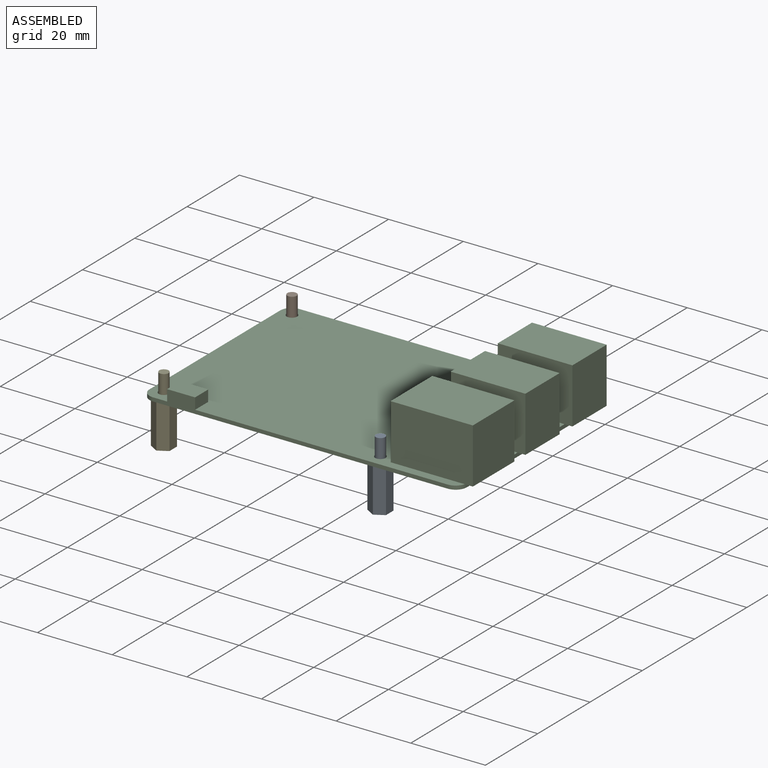
[diagram: assembled view]
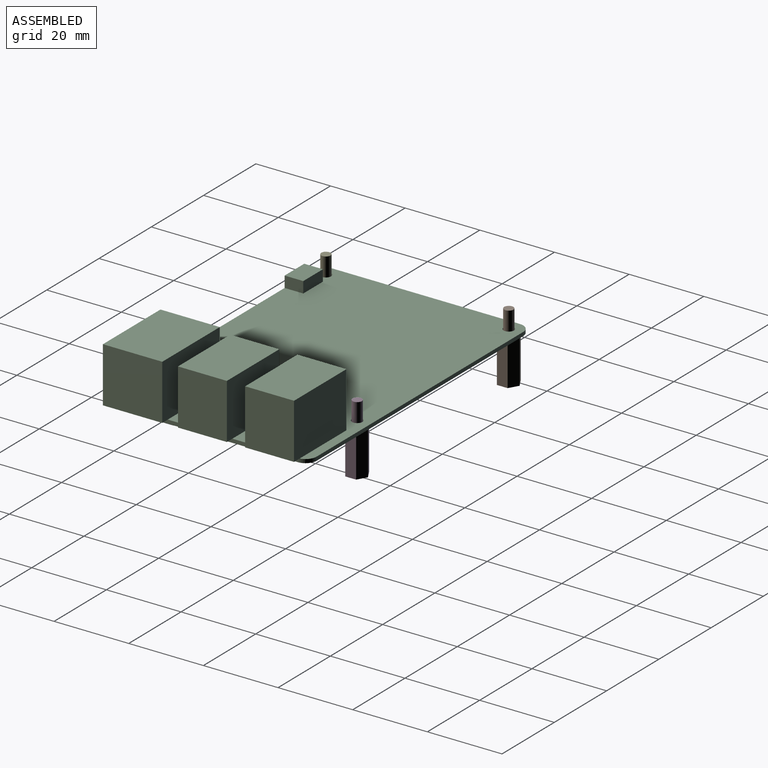
[diagram: assembled view, second angle]
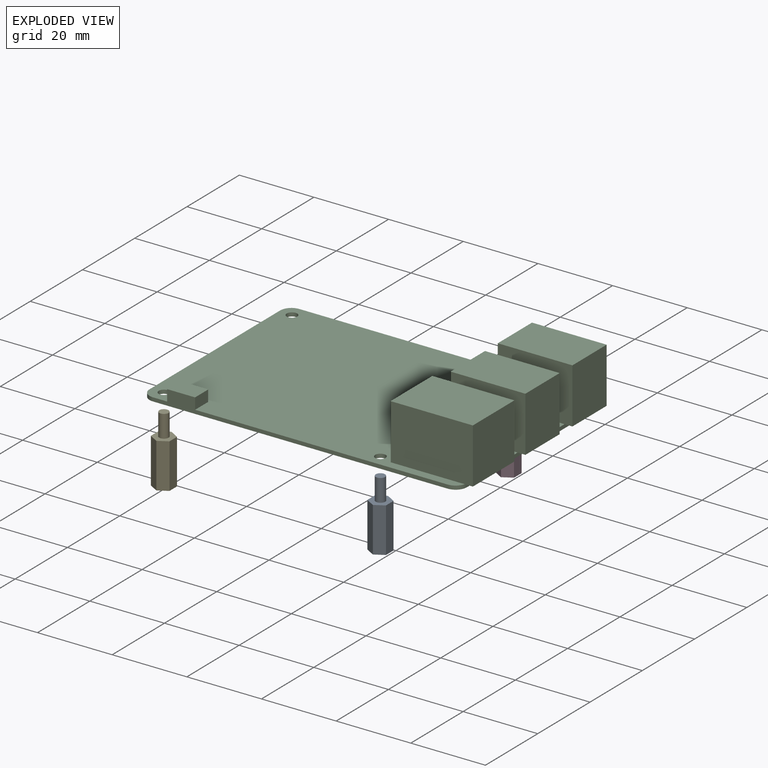
[diagram: exploded view]
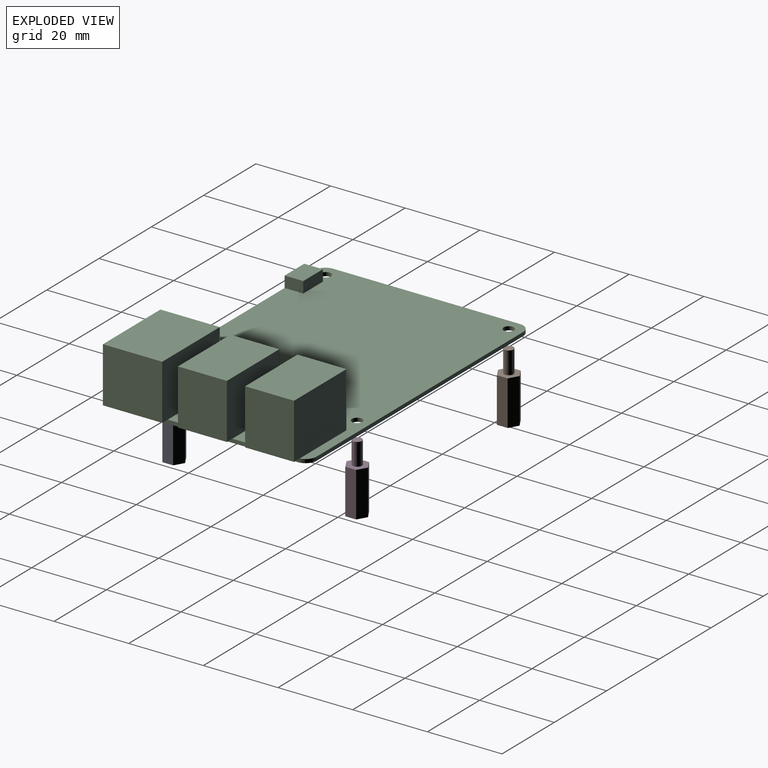
[diagram: exploded view, second angle]
ASSEMBLY  parts=5 mates=4
PART A: 12 faces, bbox 5x5.8x18 mm
  f0: plane 12x2.5mm, normal (-0.5,0.87,0), area 34.6mm2, adj f1,f5,f6,f7
  f1: plane 12x2.89mm, normal (-1,0,0), area 34.6mm2, adj f0,f2,f6,f7
  f2: plane 12x2.5mm, normal (-0.5,-0.87,0), area 34.6mm2, adj f1,f3,f6,f7
  f3: plane 12x2.5mm, normal (0.5,-0.87,0), area 34.6mm2, adj f2,f4,f6,f7
  f4: plane 12x2.89mm, normal (1,0,0), area 34.6mm2, adj f3,f5,f6,f7
  f5: plane 12x2.5mm, normal (0.5,0.87,0), area 34.6mm2, adj f0,f4,f6,f7
  f6: plane 5.77x5mm, normal (0,0,1), area 16.7mm2, adj f0,f1,f2,f3,f4,f5,f8
  f7: plane 5.77x5mm, normal (0,0,-1), area 16.7mm2, adj f0,f1,f2,f3,f4,f5,f10
  f8: cylinder r=1.25mm len=6mm, axis (0,0,-1), area 47.1mm2, adj f6,f9
  f9: plane 2.5x2.5mm, normal (0,0,1), area 4.9mm2, adj f8
  f10: cylinder r=1.25mm len=5mm, axis (0,0,-1), area 39.3mm2, adj f7,f11
  f11: cone r=0mm half-angle=59deg, axis (0,0,-1), area 5.7mm2, adj f10
PART B: same geometry as A
PART C: 36 faces, bbox 87.1x56x15.8 mm
  f0: plane 85x56mm, normal (0,0,1), area 3904.8mm2, adj f1,f2,f3,f4,f6,f7,f8,f9
  f1: plane 50x1mm, normal (-1,0,0), area 50mm2, adj f0,f5,f6,f9
  f2: plane 79x4mm, normal (0,-1,0), area 101.5mm2, adj f0,f5,f6,f7,f32,f34,f35
  f3: plane 50x1mm, normal (1,0,0), area 50mm2, adj f0,f5,f7,f8,f10,f16,f22
  f4: plane 79x1mm, normal (0,1,0), area 79mm2, adj f0,f5,f8,f9
  f5: plane 85x56mm, normal (0,0,-1), area 4727.6mm2, adj f1,f2,f3,f4,f6,f7,f8,f9
  f6: cylinder r=3mm len=3mm, axis (0,0,1), area 4.7mm2, adj f0,f1,f2,f5
  f7: cylinder r=3mm len=3mm, axis (0,0,-1), area 4.7mm2, adj f0,f2,f3,f5,f10
  f8: cylinder r=3mm len=3mm, axis (0,0,1), area 4.7mm2, adj f0,f3,f4,f5,f22
  f9: cylinder r=3mm len=3mm, axis (0,0,-1), area 4.7mm2, adj f0,f1,f4,f5
  f10: plane 15.9x2.18mm, normal (0,0,-1), area 33.4mm2, adj f3,f7,f11,f13,f14
  f11: plane 22x14.8mm, normal (0,1,0), area 325.6mm2, adj f0,f10,f12,f14,f15
  f12: plane 15.9x14.8mm, normal (-1,0,0), area 235.3mm2, adj f0,f11,f13,f15
  f13: plane 22x14.8mm, normal (0,-1,0), area 325.6mm2, adj f0,f10,f12,f14,f15
  f14: plane 15.9x14.8mm, normal (1,0,0), area 235.3mm2, adj f10,f11,f13,f15
  f15: plane 22x15.9mm, normal (0,0,1), area 349.8mm2, adj f11,f12,f13,f14
  f16: plane 13.1x2.1mm, normal (0,0,-1), area 27.5mm2, adj f3,f18,f19,f20
  f17: plane 14.8x13.1mm, normal (-1,0,0), area 193.9mm2, adj f0,f18,f20,f21
  f18: plane 20x14.8mm, normal (0,-1,0), area 296mm2, adj f0,f16,f17,f19,f21
  f19: plane 14.8x13.1mm, normal (1,0,0), area 193.9mm2, adj f16,f18,f20,f21
  f20: plane 20x14.8mm, normal (0,1,0), area 296mm2, adj f0,f16,f17,f19,f21
  f21: plane 20x13.1mm, normal (0,0,1), area 262mm2, adj f17,f18,f19,f20
  f22: plane 13.1x2.14mm, normal (0,0,-1), area 27.5mm2, adj f3,f8,f23,f25,f26
  f23: plane 20x14.8mm, normal (0,1,0), area 296mm2, adj f0,f22,f24,f26,f27
  f24: plane 14.8x13.1mm, normal (-1,0,0), area 193.9mm2, adj f0,f23,f25,f27
  f25: plane 20x14.8mm, normal (0,-1,0), area 296mm2, adj f0,f22,f24,f26,f27
  f26: plane 14.8x13.1mm, normal (1,0,0), area 193.9mm2, adj f22,f23,f25,f27
  f27: plane 20x13.1mm, normal (0,0,1), area 262mm2, adj f23,f24,f25,f26
  f28: cylinder r=1.4mm len=2.8mm, axis (0,0,1), area 8.8mm2, adj f0,f5
  f29: cylinder r=1.4mm len=2.8mm, axis (0,0,1), area 8.8mm2, adj f0,f5
  f30: cylinder r=1.4mm len=2.8mm, axis (0,0,1), area 8.8mm2, adj f0,f5
  f31: cylinder r=1.4mm len=2.8mm, axis (0,0,1), area 8.8mm2, adj f0,f5
  f32: plane 5x3mm, normal (1,0,0), area 15mm2, adj f0,f2,f33,f35
  f33: plane 7.5x3mm, normal (0,1,0), area 22.5mm2, adj f0,f32,f34,f35
  f34: plane 5x3mm, normal (-1,0,0), area 15mm2, adj f0,f2,f33,f35
  f35: plane 7.5x5mm, normal (0,0,1), area 37.5mm2, adj f2,f32,f33,f34
PART D: same geometry as A
PART E: same geometry as A
PLACE A t=(19,-24.5,-12)mm
PLACE B t=(-39,24.5,-12)mm
PLACE C at identity fixed
PLACE D t=(19,24.5,-12)mm
PLACE E t=(-39,-24.5,-12)mm
MATE fastened D.f8 <-> C.f29  axis (0,0,1) through (19,24.5,0)mm
MATE fastened E.f8 <-> C.f31  axis (0,0,-1) through (-39,-24.5,0)mm
MATE fastened A.f8 <-> C.f30  axis (0,0,1) through (19,-24.5,0)mm
MATE fastened B.f8 <-> C.f28  axis (0,0,1) through (-39,24.5,0)mm
